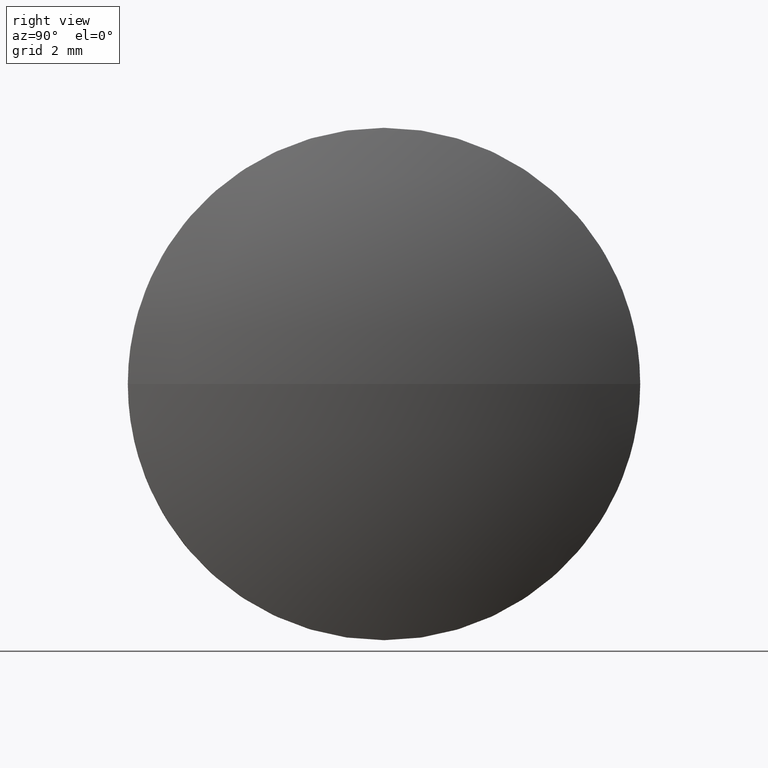
[diagram: clean part render]
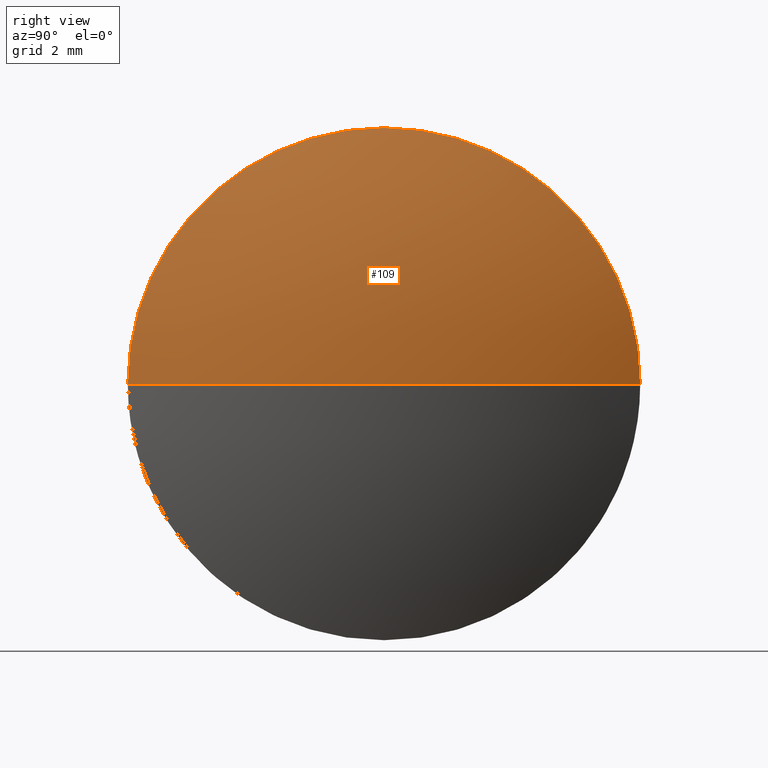
[diagram: same view with one face highlighted and labeled with its STEP entity id]
A machine part, right view. The second image highlights one B-rep face of the part: STEP entity #109.
In plain terms, the highlighted spherical surface has radius 20.6808 mm.
Its self-contained STEP definition (entity closure, byte-faithful):
#4 = DIRECTION ( 'NONE',  ( 0.0000000000000000000, 1.000000000000000000, 0.0000000000000000000 ) ) ;
#7 = CARTESIAN_POINT ( 'NONE',  ( 422.6905016260999400, 0.7681557501930390600, 0.0000000000000000000 ) ) ;
#9 = EDGE_CURVE ( 'NONE', #159, #77, #82, .T. ) ;
#15 = ORIENTED_EDGE ( 'NONE', *, *, #114, .F. ) ;
#26 = AXIS2_PLACEMENT_3D ( 'NONE', #166, #151, #39 ) ;
#30 = CARTESIAN_POINT ( 'NONE',  ( 422.6905016260999400, 0.7681557501930390600, 0.0000000000000000000 ) ) ;
#34 = CIRCLE ( 'NONE', #99, 20.68077639751554000 ) ;
#38 = AXIS2_PLACEMENT_3D ( 'NONE', #71, #177, #134 ) ;
#39 = DIRECTION ( 'NONE',  ( 0.0000000000000000000, 0.0000000000000000000, 1.000000000000000000 ) ) ;
#40 = CARTESIAN_POINT ( 'NONE',  ( 441.7612780236154900, -7.231844249806953500, -9.797174393178815800E-016 ) ) ;
#41 = ORIENTED_EDGE ( 'NONE', *, *, #88, .T. ) ;
#42 = DIRECTION ( 'NONE',  ( 0.0000000000000000000, 0.0000000000000000000, 1.000000000000000000 ) ) ;
#49 = FACE_OUTER_BOUND ( 'NONE', #116, .T. ) ;
#60 = CIRCLE ( 'NONE', #38, 20.68077639751553300 ) ;
#71 = CARTESIAN_POINT ( 'NONE',  ( 422.6905016260999400, 0.7681557501930390600, 0.0000000000000000000 ) ) ;
#72 = SPHERICAL_SURFACE ( 'NONE', #85, 20.68077639751554000 ) ;
#77 = VERTEX_POINT ( 'NONE', #115 ) ;
#79 = ORIENTED_EDGE ( 'NONE', *, *, #139, .F. ) ;
#82 = CIRCLE ( 'NONE', #111, 8.000000000000000000 ) ;
#83 = CARTESIAN_POINT ( 'NONE',  ( 441.7612780236154900, 8.768155750193066900, 0.0000000000000000000 ) ) ;
#84 = DIRECTION ( 'NONE',  ( 0.0000000000000000000, 1.000000000000000000, 1.224646799147353200E-016 ) ) ;
#85 = AXIS2_PLACEMENT_3D ( 'NONE', #30, #133, #4 ) ;
#88 = EDGE_CURVE ( 'NONE', #182, #120, #60, .T. ) ;
#89 = ORIENTED_EDGE ( 'NONE', *, *, #9, .F. ) ;
#99 = AXIS2_PLACEMENT_3D ( 'NONE', #7, #135, #84 ) ;
#109 = ADVANCED_FACE ( 'NONE', ( #49 ), #72, .T. ) ;
#111 = AXIS2_PLACEMENT_3D ( 'NONE', #125, #140, #42 ) ;
#114 = EDGE_CURVE ( 'NONE', #77, #120, #179, .T. ) ;
#115 = CARTESIAN_POINT ( 'NONE',  ( 441.7612780236154900, 0.7681557501930741400, 8.000000000000000000 ) ) ;
#116 = EDGE_LOOP ( 'NONE', ( #79, #41, #15, #89 ) ) ;
#120 = VERTEX_POINT ( 'NONE', #83 ) ;
#125 = CARTESIAN_POINT ( 'NONE',  ( 441.7612780236154900, 0.7681557501930741400, 0.0000000000000000000 ) ) ;
#133 = DIRECTION ( 'NONE',  ( -0.0000000000000000000, 0.0000000000000000000, -1.000000000000000000 ) ) ;
#134 = DIRECTION ( 'NONE',  ( 1.000000000000000000, 0.0000000000000000000, 0.0000000000000000000 ) ) ;
#135 = DIRECTION ( 'NONE',  ( 0.0000000000000000000, 1.224646799147353200E-016, -1.000000000000000000 ) ) ;
#139 = EDGE_CURVE ( 'NONE', #182, #159, #34, .T. ) ;
#140 = DIRECTION ( 'NONE',  ( -1.000000000000000000, -0.0000000000000000000, -0.0000000000000000000 ) ) ;
#151 = DIRECTION ( 'NONE',  ( -1.000000000000000000, -0.0000000000000000000, -0.0000000000000000000 ) ) ;
#159 = VERTEX_POINT ( 'NONE', #40 ) ;
#164 = CARTESIAN_POINT ( 'NONE',  ( 443.3712780236155000, 0.7681557501930403900, 0.0000000000000000000 ) ) ;
#166 = CARTESIAN_POINT ( 'NONE',  ( 441.7612780236154900, 0.7681557501930741400, 0.0000000000000000000 ) ) ;
#177 = DIRECTION ( 'NONE',  ( -0.0000000000000000000, 0.0000000000000000000, 1.000000000000000000 ) ) ;
#179 = CIRCLE ( 'NONE', #26, 8.000000000000000000 ) ;
#182 = VERTEX_POINT ( 'NONE', #164 ) ;